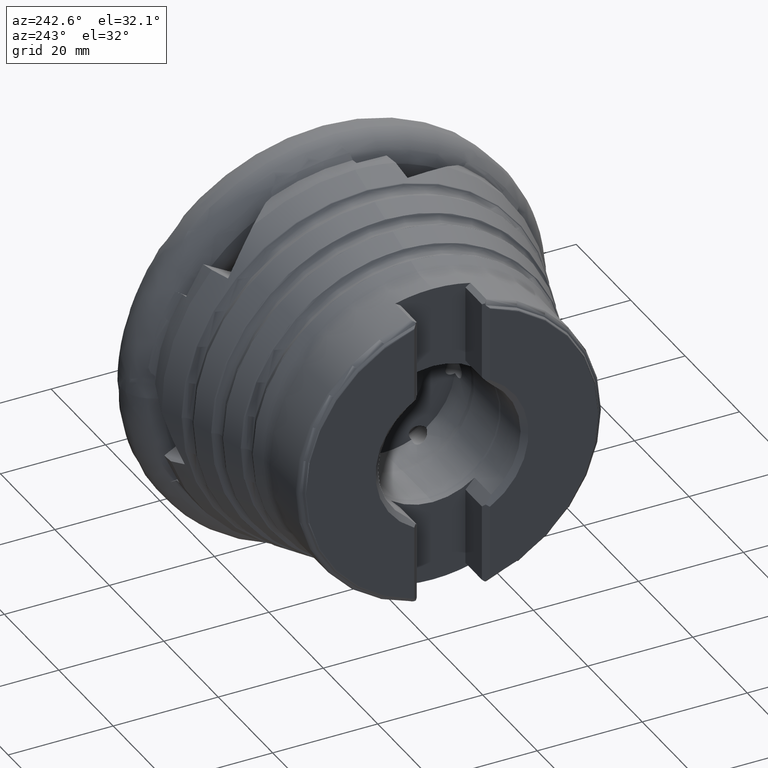
[diagram: clean part render]
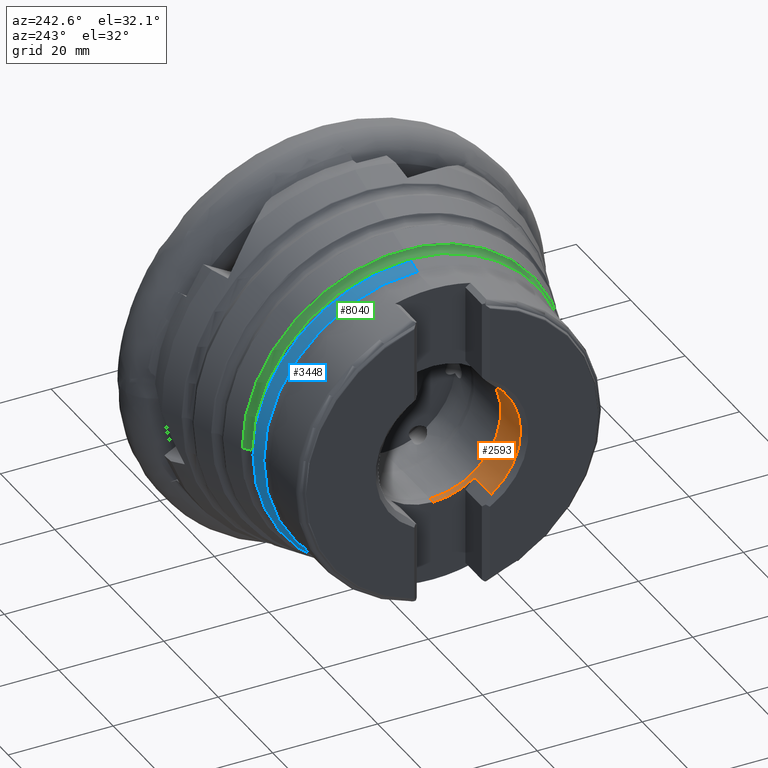
[diagram: same view with three faces highlighted in distinct colors, each labeled with its STEP entity id]
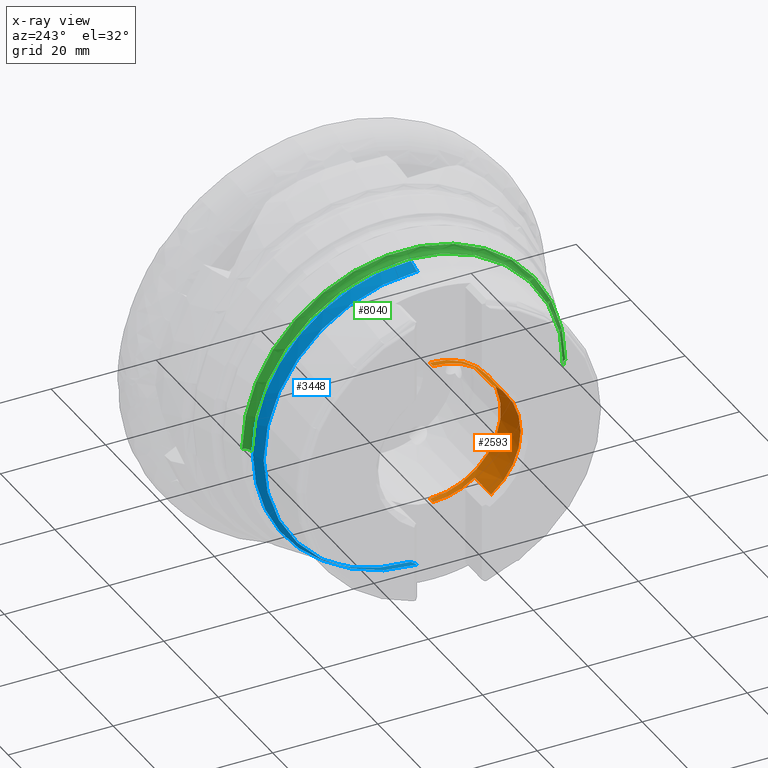
[diagram: x-ray of the same camera — body ghosted, the three highlighted faces saturated]
A machine part, auxiliary view with three faces highlighted in distinct colors.
The next image is the same camera in x-ray (body ghosted, the three faces saturated) — at least one of them is partly hidden behind the body in this view.
Their STEP definitions:

[orange] entity #2593 — the highlighted cylindrical surface (partial cylindrical patch) has radius 13.575 mm, axis along (1, -0, -0).
#147 = CARTESIAN_POINT ( 'NONE',  ( -41.65000000000000600, 1.662458029842531100E-015, 13.57499999999999400 ) ) ;
#148 = CARTESIAN_POINT ( 'NONE',  ( 0.0000000000000000000, 1.662458029842531100E-015, 13.57499999999999400 ) ) ;
#341 = DIRECTION ( 'NONE',  ( 0.0000000000000000000, 0.0000000000000000000, -1.000000000000000000 ) ) ;
#444 = EDGE_CURVE ( 'NONE', #6699, #1157, #8031, .T. ) ;
#453 = VERTEX_POINT ( 'NONE', #2075 ) ;
#476 = EDGE_CURVE ( 'NONE', #1906, #6276, #9513, .T. ) ;
#593 = CARTESIAN_POINT ( 'NONE',  ( 0.0000000000000000000, 0.0000000000000000000, 0.0000000000000000000 ) ) ;
#683 = DIRECTION ( 'NONE',  ( 1.000000000000000000, -0.0000000000000000000, -0.0000000000000000000 ) ) ;
#819 = VECTOR ( 'NONE', #683, 1000.000000000000000 ) ;
#1064 = FACE_OUTER_BOUND ( 'NONE', #7870, .T. ) ;
#1157 = VERTEX_POINT ( 'NONE', #2126 ) ;
#1245 = CARTESIAN_POINT ( 'NONE',  ( -1.381248151840442900E-030, -7.956204235286500100, -10.99906537694948800 ) ) ;
#1314 = VECTOR ( 'NONE', #6381, 1000.000000000000000 ) ;
#1334 = CARTESIAN_POINT ( 'NONE',  ( -40.45000000000001000, 1.662458029842531100E-015, 13.57499999999999400 ) ) ;
#1345 = DIRECTION ( 'NONE',  ( 0.0000000000000000000, 0.0000000000000000000, -1.000000000000000000 ) ) ;
#1415 = EDGE_CURVE ( 'NONE', #5141, #6699, #4366, .T. ) ;
#1497 = CARTESIAN_POINT ( 'NONE',  ( -47.70000000000000300, -7.956204235286510800, -10.99906537694948300 ) ) ;
#1504 = EDGE_CURVE ( 'NONE', #3795, #1906, #7046, .T. ) ;
#1859 = AXIS2_PLACEMENT_3D ( 'NONE', #6011, #9084, #6743 ) ;
#1898 = CARTESIAN_POINT ( 'NONE',  ( -41.65000000000000600, 0.0000000000000000000, 0.0000000000000000000 ) ) ;
#1906 = VERTEX_POINT ( 'NONE', #4901 ) ;
#2035 = DIRECTION ( 'NONE',  ( 1.000000000000000000, -0.0000000000000000000, -0.0000000000000000000 ) ) ;
#2075 = CARTESIAN_POINT ( 'NONE',  ( -47.70000000000000300, -7.956204235286510800, 10.99906537694948300 ) ) ;
#2122 = DIRECTION ( 'NONE',  ( 1.000000000000000000, -0.0000000000000000000, -0.0000000000000000000 ) ) ;
#2126 = CARTESIAN_POINT ( 'NONE',  ( -40.45000000000001000, 0.0000000000000000000, -13.57499999999999400 ) ) ;
#2421 = LINE ( 'NONE', #10018, #819 ) ;
#2488 = CIRCLE ( 'NONE', #4611, 13.57499999999999400 ) ;
#2593 = ADVANCED_FACE ( 'NONE', ( #1064 ), #3775, .F. ) ;
#2756 = ORIENTED_EDGE ( 'NONE', *, *, #1415, .T. ) ;
#2906 = EDGE_CURVE ( 'NONE', #453, #6220, #10118, .T. ) ;
#3002 = CIRCLE ( 'NONE', #5014, 13.57499999999999400 ) ;
#3026 = ORIENTED_EDGE ( 'NONE', *, *, #444, .T. ) ;
#3064 = DIRECTION ( 'NONE',  ( 0.0000000000000000000, 1.776356839400250500E-015, -1.000000000000000000 ) ) ;
#3096 = ORIENTED_EDGE ( 'NONE', *, *, #1504, .T. ) ;
#3775 = CYLINDRICAL_SURFACE ( 'NONE', #5590, 13.57499999999999400 ) ;
#3795 = VERTEX_POINT ( 'NONE', #7449 ) ;
#3961 = AXIS2_PLACEMENT_3D ( 'NONE', #1898, #9595, #341 ) ;
#4366 = LINE ( 'NONE', #148, #1314 ) ;
#4611 = AXIS2_PLACEMENT_3D ( 'NONE', #5306, #7745, #3064 ) ;
#4794 = EDGE_CURVE ( 'NONE', #3795, #1157, #2421, .T. ) ;
#4836 = VECTOR ( 'NONE', #2122, 1000.000000000000000 ) ;
#4853 = ORIENTED_EDGE ( 'NONE', *, *, #4794, .F. ) ;
#4901 = CARTESIAN_POINT ( 'NONE',  ( -41.65000000000000600, -7.956204235286507200, -10.99906537694948300 ) ) ;
#4920 = ORIENTED_EDGE ( 'NONE', *, *, #476, .T. ) ;
#5014 = AXIS2_PLACEMENT_3D ( 'NONE', #9936, #2035, #1345 ) ;
#5141 = VERTEX_POINT ( 'NONE', #147 ) ;
#5306 = CARTESIAN_POINT ( 'NONE',  ( -41.65000000000000600, 0.0000000000000000000, 0.0000000000000000000 ) ) ;
#5590 = AXIS2_PLACEMENT_3D ( 'NONE', #593, #6029, #6071 ) ;
#6002 = CARTESIAN_POINT ( 'NONE',  ( -1.074304118098122400E-030, -7.956204235286501900, 10.99906537694948700 ) ) ;
#6011 = CARTESIAN_POINT ( 'NONE',  ( -40.45000000000001000, 0.0000000000000000000, 0.0000000000000000000 ) ) ;
#6029 = DIRECTION ( 'NONE',  ( 1.000000000000000000, -0.0000000000000000000, -0.0000000000000000000 ) ) ;
#6071 = DIRECTION ( 'NONE',  ( 0.0000000000000000000, 0.0000000000000000000, -1.000000000000000000 ) ) ;
#6192 = ORIENTED_EDGE ( 'NONE', *, *, #7358, .F. ) ;
#6220 = VERTEX_POINT ( 'NONE', #9153 ) ;
#6276 = VERTEX_POINT ( 'NONE', #1497 ) ;
#6381 = DIRECTION ( 'NONE',  ( 1.000000000000000000, -0.0000000000000000000, -0.0000000000000000000 ) ) ;
#6699 = VERTEX_POINT ( 'NONE', #1334 ) ;
#6743 = DIRECTION ( 'NONE',  ( 0.0000000000000000000, 0.0000000000000000000, -1.000000000000000000 ) ) ;
#7046 = CIRCLE ( 'NONE', #3961, 13.57499999999999400 ) ;
#7145 = ORIENTED_EDGE ( 'NONE', *, *, #2906, .T. ) ;
#7358 = EDGE_CURVE ( 'NONE', #453, #6276, #3002, .T. ) ;
#7449 = CARTESIAN_POINT ( 'NONE',  ( -41.65000000000000600, 0.0000000000000000000, -13.57499999999999400 ) ) ;
#7745 = DIRECTION ( 'NONE',  ( -1.000000000000000000, -0.0000000000000000000, -0.0000000000000000000 ) ) ;
#7870 = EDGE_LOOP ( 'NONE', ( #8638, #2756, #3026, #4853, #3096, #4920, #6192, #7145 ) ) ;
#8031 = CIRCLE ( 'NONE', #1859, 13.57499999999999400 ) ;
#8403 = DIRECTION ( 'NONE',  ( -1.000000000000000000, 0.0000000000000000000, 0.0000000000000000000 ) ) ;
#8638 = ORIENTED_EDGE ( 'NONE', *, *, #8985, .T. ) ;
#8985 = EDGE_CURVE ( 'NONE', #6220, #5141, #2488, .T. ) ;
#9084 = DIRECTION ( 'NONE',  ( 1.000000000000000000, -0.0000000000000000000, -0.0000000000000000000 ) ) ;
#9153 = CARTESIAN_POINT ( 'NONE',  ( -41.65000000000000600, -7.956204235286507200, 10.99906537694948300 ) ) ;
#9390 = VECTOR ( 'NONE', #8403, 1000.000000000000000 ) ;
#9513 = LINE ( 'NONE', #1245, #9390 ) ;
#9595 = DIRECTION ( 'NONE',  ( -1.000000000000000000, -0.0000000000000000000, -0.0000000000000000000 ) ) ;
#9936 = CARTESIAN_POINT ( 'NONE',  ( -47.70000000000000300, 0.0000000000000000000, 0.0000000000000000000 ) ) ;
#10018 = CARTESIAN_POINT ( 'NONE',  ( 0.0000000000000000000, 0.0000000000000000000, -13.57499999999999400 ) ) ;
#10118 = LINE ( 'NONE', #6002, #4836 ) ;

[blue] entity #3448 — the highlighted conical surface has half-angle 18.217 deg.
#5 = DIRECTION ( 'NONE',  ( 0.0000000000000000000, 0.0000000000000000000, -1.000000000000000000 ) ) ;
#178 = DIRECTION ( 'NONE',  ( -1.000000000000000000, 0.0000000000000000000, 0.0000000000000000000 ) ) ;
#298 = EDGE_CURVE ( 'NONE', #9991, #4810, #6275, .T. ) ;
#395 = CARTESIAN_POINT ( 'NONE',  ( -12.99999999999999800, 0.0000000000000000000, 0.0000000000000000000 ) ) ;
#565 = LINE ( 'NONE', #783, #8970 ) ;
#783 = CARTESIAN_POINT ( 'NONE',  ( -12.99999999999999800, 0.0000000000000000000, -36.79999999999999700 ) ) ;
#956 = DIRECTION ( 'NONE',  ( 0.0000000000000000000, 8.881784197001252300E-016, -1.000000000000000000 ) ) ;
#1051 = EDGE_CURVE ( 'NONE', #4720, #8674, #7288, .T. ) ;
#1133 = AXIS2_PLACEMENT_3D ( 'NONE', #4818, #2493, #2568 ) ;
#1349 = ORIENTED_EDGE ( 'NONE', *, *, #3978, .T. ) ;
#1419 = EDGE_CURVE ( 'NONE', #4810, #3276, #5449, .T. ) ;
#2258 = ORIENTED_EDGE ( 'NONE', *, *, #6369, .F. ) ;
#2493 = DIRECTION ( 'NONE',  ( -1.000000000000000000, 0.0000000000000000000, 0.0000000000000000000 ) ) ;
#2568 = DIRECTION ( 'NONE',  ( 0.0000000000000000000, 0.0000000000000000000, -1.000000000000000000 ) ) ;
#2584 = CARTESIAN_POINT ( 'NONE',  ( -12.99999999999999800, 4.506700220862259300E-015, 36.79999999999999700 ) ) ;
#2920 = CARTESIAN_POINT ( 'NONE',  ( -35.93854359112196300, 0.0000000000000000000, -29.25060590671936500 ) ) ;
#2943 = AXIS2_PLACEMENT_3D ( 'NONE', #6247, #9287, #5 ) ;
#3229 = CARTESIAN_POINT ( 'NONE',  ( -33.53443244604766000, -2.398748699128604100E-015, 0.0000000000000000000 ) ) ;
#3244 = ORIENTED_EDGE ( 'NONE', *, *, #298, .T. ) ;
#3276 = VERTEX_POINT ( 'NONE', #3924 ) ;
#3448 = ADVANCED_FACE ( 'NONE', ( #3874 ), #5799, .T. ) ;
#3804 = CARTESIAN_POINT ( 'NONE',  ( -33.53443244604766000, 30.04183235952862700, 3.679063383961811400E-015 ) ) ;
#3874 = FACE_OUTER_BOUND ( 'NONE', #7590, .T. ) ;
#3924 = CARTESIAN_POINT ( 'NONE',  ( -33.53443244604766000, 0.0000000000000000000, -30.04183235952862700 ) ) ;
#3978 = EDGE_CURVE ( 'NONE', #8674, #9991, #5203, .T. ) ;
#4041 = CARTESIAN_POINT ( 'NONE',  ( -35.93854359112196300, 3.582166089678452700E-015, 29.25060590671936500 ) ) ;
#4278 = DIRECTION ( 'NONE',  ( 1.000000000000000000, -0.0000000000000000000, -0.0000000000000000000 ) ) ;
#4720 = VERTEX_POINT ( 'NONE', #2920 ) ;
#4810 = VERTEX_POINT ( 'NONE', #3804 ) ;
#4818 = CARTESIAN_POINT ( 'NONE',  ( -33.53443244604766000, -2.398748699128604100E-015, 0.0000000000000000000 ) ) ;
#5203 = LINE ( 'NONE', #2584, #7538 ) ;
#5449 = CIRCLE ( 'NONE', #8984, 30.04183235952863000 ) ;
#5712 = DIRECTION ( 'NONE',  ( 0.9498788186561274400, 3.828470560249675000E-017, 0.3126183453804971000 ) ) ;
#5799 = CONICAL_SURFACE ( 'NONE', #8575, 36.79999999999999700, 0.3179482913512908800 ) ;
#6247 = CARTESIAN_POINT ( 'NONE',  ( -35.93854359112196300, 0.0000000000000000000, 0.0000000000000000000 ) ) ;
#6275 = CIRCLE ( 'NONE', #1133, 30.04183235952863000 ) ;
#6306 = DIRECTION ( 'NONE',  ( 0.9498788186561274400, 0.0000000000000000000, -0.3126183453804971000 ) ) ;
#6369 = EDGE_CURVE ( 'NONE', #4720, #3276, #565, .T. ) ;
#7288 = CIRCLE ( 'NONE', #2943, 29.25060590671936500 ) ;
#7335 = ORIENTED_EDGE ( 'NONE', *, *, #1419, .T. ) ;
#7538 = VECTOR ( 'NONE', #5712, 1000.000000000000000 ) ;
#7590 = EDGE_LOOP ( 'NONE', ( #8905, #1349, #3244, #7335, #2258 ) ) ;
#8575 = AXIS2_PLACEMENT_3D ( 'NONE', #395, #4278, #9686 ) ;
#8674 = VERTEX_POINT ( 'NONE', #4041 ) ;
#8752 = CARTESIAN_POINT ( 'NONE',  ( -33.53443244604766000, 3.679063383961811400E-015, 30.04183235952862700 ) ) ;
#8905 = ORIENTED_EDGE ( 'NONE', *, *, #1051, .T. ) ;
#8970 = VECTOR ( 'NONE', #6306, 1000.000000000000000 ) ;
#8984 = AXIS2_PLACEMENT_3D ( 'NONE', #3229, #178, #956 ) ;
#9287 = DIRECTION ( 'NONE',  ( 1.000000000000000000, -0.0000000000000000000, -0.0000000000000000000 ) ) ;
#9686 = DIRECTION ( 'NONE',  ( 0.0000000000000000000, 0.0000000000000000000, -1.000000000000000000 ) ) ;
#9991 = VERTEX_POINT ( 'NONE', #8752 ) ;

[green] entity #8040 — the highlighted toroidal blend (fillet) surface has major radius 31.2113 mm and minor (blend) radius 1.5 mm.
#23 = VERTEX_POINT ( 'NONE', #5715 ) ;
#112 = EDGE_LOOP ( 'NONE', ( #4339, #1104, #8197, #9615 ) ) ;
#536 = DIRECTION ( 'NONE',  ( -1.000000000000000000, -6.123233995736751200E-017, 0.0000000000000000000 ) ) ;
#734 = VERTEX_POINT ( 'NONE', #9365 ) ;
#945 = EDGE_CURVE ( 'NONE', #734, #2839, #7786, .T. ) ;
#1104 = ORIENTED_EDGE ( 'NONE', *, *, #945, .T. ) ;
#1187 = AXIS2_PLACEMENT_3D ( 'NONE', #8263, #536, #3719 ) ;
#1980 = DIRECTION ( 'NONE',  ( 1.000000000000000000, 1.224646799147350200E-016, -0.0000000000000000000 ) ) ;
#2256 = CARTESIAN_POINT ( 'NONE',  ( -32.38015518039333800, 31.21129548164644500, 0.0000000000000000000 ) ) ;
#2839 = VERTEX_POINT ( 'NONE', #3193 ) ;
#3094 = DIRECTION ( 'NONE',  ( -0.0000000000000000000, 0.0000000000000000000, -1.000000000000000000 ) ) ;
#3193 = CARTESIAN_POINT ( 'NONE',  ( -32.38015518039333100, -29.71129548164645200, 3.638584291011954000E-015 ) ) ;
#3240 = AXIS2_PLACEMENT_3D ( 'NONE', #5519, #7198, #4732 ) ;
#3359 = TOROIDAL_SURFACE ( 'NONE', #3240, 31.21129548164644900, 1.500000000000000900 ) ;
#3719 = DIRECTION ( 'NONE',  ( 1.127870870468117700E-016, -1.000000000000000000, 0.0000000000000000000 ) ) ;
#4339 = ORIENTED_EDGE ( 'NONE', *, *, #4781, .T. ) ;
#4732 = DIRECTION ( 'NONE',  ( -1.224646799147350200E-016, 1.000000000000000000, 0.0000000000000000000 ) ) ;
#4781 = EDGE_CURVE ( 'NONE', #23, #734, #7894, .T. ) ;
#5106 = CARTESIAN_POINT ( 'NONE',  ( -32.38015518039332400, -31.21129548164645200, 3.822281310884056700E-015 ) ) ;
#5186 = DIRECTION ( 'NONE',  ( -1.499759782661854000E-032, 1.224646799147353200E-016, 1.000000000000000000 ) ) ;
#5519 = CARTESIAN_POINT ( 'NONE',  ( -32.38015518039333100, -3.469446951953614200E-015, 0.0000000000000000000 ) ) ;
#5715 = CARTESIAN_POINT ( 'NONE',  ( -30.94932994094346100, 30.76102985542785400, 0.0000000000000000000 ) ) ;
#6440 = AXIS2_PLACEMENT_3D ( 'NONE', #6656, #1980, #7443 ) ;
#6656 = CARTESIAN_POINT ( 'NONE',  ( -32.38015518039333100, -3.469446951953614200E-015, 0.0000000000000000000 ) ) ;
#7009 = DIRECTION ( 'NONE',  ( -1.000000000000000000, 0.0000000000000000000, 0.0000000000000000000 ) ) ;
#7198 = DIRECTION ( 'NONE',  ( 1.000000000000000000, 1.224646799147350200E-016, -0.0000000000000000000 ) ) ;
#7263 = AXIS2_PLACEMENT_3D ( 'NONE', #5106, #5186, #8365 ) ;
#7287 = EDGE_CURVE ( 'NONE', #8816, #23, #8466, .T. ) ;
#7355 = EDGE_CURVE ( 'NONE', #8816, #2839, #7368, .T. ) ;
#7365 = CARTESIAN_POINT ( 'NONE',  ( -30.94932994094346100, -30.76102985542783900, 3.767139675092586200E-015 ) ) ;
#7368 = CIRCLE ( 'NONE', #7263, 1.500000000000001300 ) ;
#7443 = DIRECTION ( 'NONE',  ( -2.335439701104110100E-016, 1.000000000000000000, 0.0000000000000000000 ) ) ;
#7495 = FACE_OUTER_BOUND ( 'NONE', #112, .T. ) ;
#7786 = CIRCLE ( 'NONE', #6440, 29.71129548164644900 ) ;
#7894 = CIRCLE ( 'NONE', #7996, 1.500000000000001300 ) ;
#7996 = AXIS2_PLACEMENT_3D ( 'NONE', #2256, #3094, #7009 ) ;
#8040 = ADVANCED_FACE ( 'NONE', ( #7495 ), #3359, .F. ) ;
#8197 = ORIENTED_EDGE ( 'NONE', *, *, #7355, .F. ) ;
#8263 = CARTESIAN_POINT ( 'NONE',  ( -30.94932994094346100, -3.381834174472037900E-015, 0.0000000000000000000 ) ) ;
#8365 = DIRECTION ( 'NONE',  ( 0.0000000000000000000, -1.000000000000000000, 1.224646799147354400E-016 ) ) ;
#8466 = CIRCLE ( 'NONE', #1187, 30.76102985542694100 ) ;
#8816 = VERTEX_POINT ( 'NONE', #7365 ) ;
#9365 = CARTESIAN_POINT ( 'NONE',  ( -32.38015518039333100, 29.71129548164644500, 0.0000000000000000000 ) ) ;
#9615 = ORIENTED_EDGE ( 'NONE', *, *, #7287, .T. ) ;